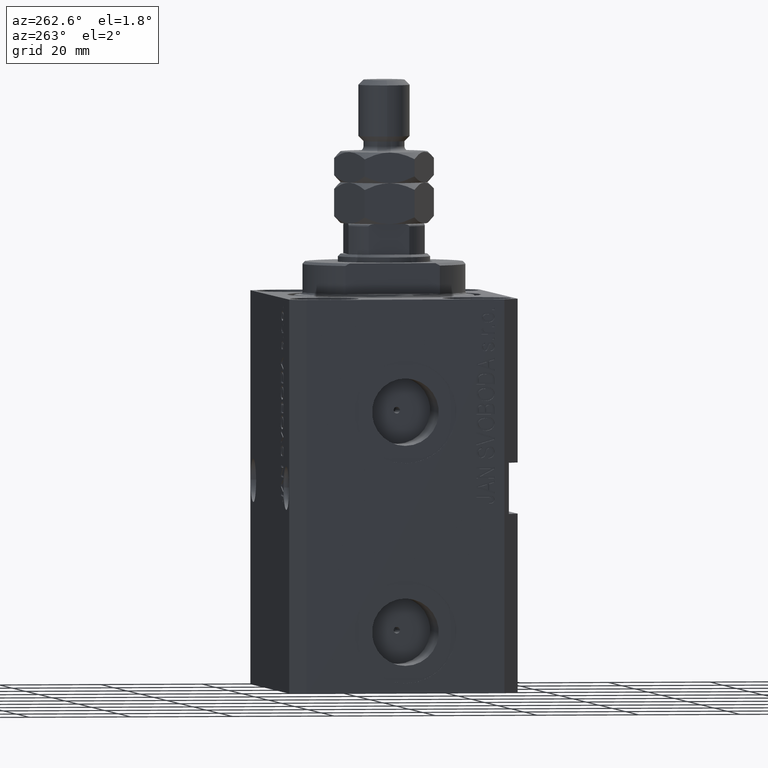
[diagram: clean part render]
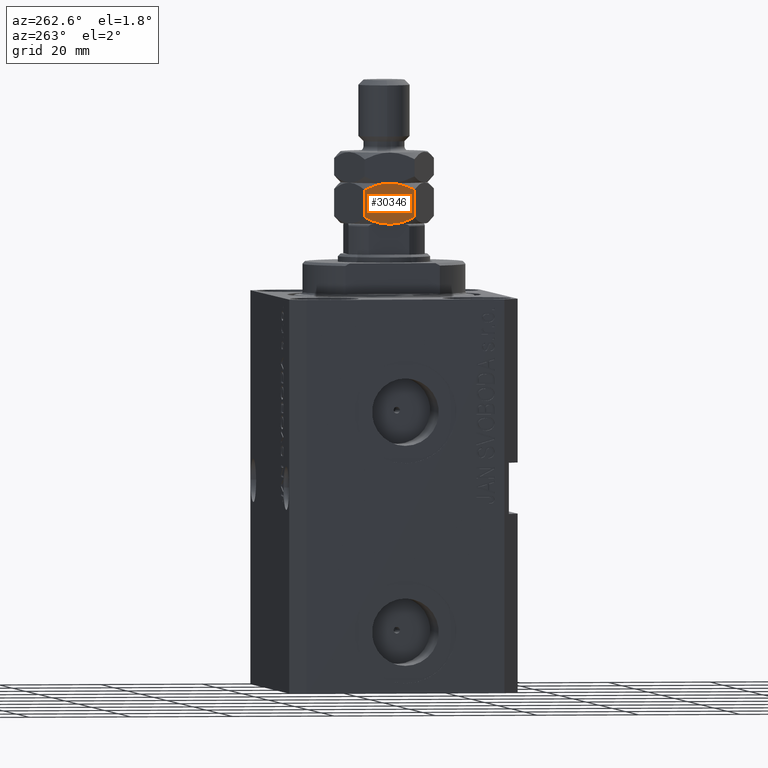
[diagram: same view with one face highlighted and labeled with its STEP entity id]
A machine part, auxiliary view. The second image highlights one B-rep face of the part: STEP entity #30346.
In plain terms, the highlighted planar face has unit normal (1, 0, 0).
Its self-contained STEP definition (entity closure, byte-faithful):
#135 = ORIENTED_EDGE ( 'NONE', *, *, #21195, .F. ) ;
#661 = CARTESIAN_POINT ( 'NONE',  ( -8.500000000000000000, -4.907477288111824265, 8.000000000000000000 ) ) ;
#2138 = CARTESIAN_POINT ( 'NONE',  ( -8.500000000000001776, -4.140161075469500851, 7.068703530097532273 ) ) ;
#2687 = FACE_OUTER_BOUND ( 'NONE', #31686, .T. ) ;
#3184 = ORIENTED_EDGE ( 'NONE', *, *, #4868, .F. ) ;
#3421 = VECTOR ( 'NONE', #36679, 1000.000000000000000 ) ;
#3712 = CARTESIAN_POINT ( 'NONE',  ( -8.499999999999998224, -0.8497195448779558680, 0.03207620093399911332 ) ) ;
#4868 = EDGE_CURVE ( 'NONE', #20050, #22221, #39556, .T. ) ;
#6216 = VERTEX_POINT ( 'NONE', #17713 ) ;
#6409 = CARTESIAN_POINT ( 'NONE',  ( -8.500000000000001776, 4.907477288111821601, 8.000000000000000000 ) ) ;
#8018 = CARTESIAN_POINT ( 'NONE',  ( -8.500000000000001776, 4.907477288111821601, 1.314954576223634097 ) ) ;
#8241 = CARTESIAN_POINT ( 'NONE',  ( -8.500000000000001776, 2.123774520232882601, 0.2525122409469394702 ) ) ;
#8259 = CARTESIAN_POINT ( 'NONE',  ( -8.499999999999996447, -1.502314598737157848E-15, 8.000000000000000000 ) ) ;
#8415 = CARTESIAN_POINT ( 'NONE',  ( -8.500000000000000000, -4.907477288111824265, 6.685045423776367457 ) ) ;
#8465 = CARTESIAN_POINT ( 'NONE',  ( -8.500000000000001776, 4.139332188297095705, 0.9308820263162732589 ) ) ;
#9550 = DIRECTION ( 'NONE',  ( -0.000000000000000000, -0.000000000000000000, -1.000000000000000000 ) ) ;
#11850 = VERTEX_POINT ( 'NONE', #19688 ) ;
#11967 = CARTESIAN_POINT ( 'NONE',  ( -8.500000000000003553, 0.4250562772389694932, 8.000000000000005329 ) ) ;
#12193 = CARTESIAN_POINT ( 'NONE',  ( -8.500000000000001776, 4.907477288111821601, 6.685045423776368345 ) ) ;
#12621 = EDGE_CURVE ( 'NONE', #11850, #20050, #24757, .T. ) ;
#12624 = ORIENTED_EDGE ( 'NONE', *, *, #33029, .F. ) ;
#13244 = CARTESIAN_POINT ( 'NONE',  ( -8.500000000000001776, -4.139854994771650532, 0.9311434295535483407 ) ) ;
#13574 = EDGE_CURVE ( 'NONE', #6216, #22221, #34897, .T. ) ;
#15651 = CARTESIAN_POINT ( 'NONE',  ( -8.500000000000003553, 0.4256370648452535432, -8.499975625696900944E-16 ) ) ;
#16717 = CARTESIAN_POINT ( 'NONE',  ( -8.500000000000000000, -4.907477288111824265, 1.314954576223634763 ) ) ;
#17145 = CARTESIAN_POINT ( 'NONE',  ( -8.499999999999996447, -1.502314598737157848E-15, 8.000000000000000000 ) ) ;
#17640 = CARTESIAN_POINT ( 'NONE',  ( -8.499999999999998224, -2.119956228269633591, 0.2515287342491187017 ) ) ;
#17713 = CARTESIAN_POINT ( 'NONE',  ( -8.500000000000001776, 4.907477288111821601, 6.685045423776368345 ) ) ;
#18538 = LINE ( 'NONE', #661, #3421 ) ;
#19170 = CARTESIAN_POINT ( 'NONE',  ( -8.500000000000003553, 4.139497883677782930, 7.069035125993385904 ) ) ;
#19688 = CARTESIAN_POINT ( 'NONE',  ( -8.500000000000000000, -4.907477288111824265, 1.314954576223634763 ) ) ;
#20050 = VERTEX_POINT ( 'NONE', #45804 ) ;
#20681 = CARTESIAN_POINT ( 'NONE',  ( -8.500000000000000000, -1.697406582464703551, 0.1576838761756158558 ) ) ;
#20772 = CARTESIAN_POINT ( 'NONE',  ( -8.500000000000000000, -4.907477288111824265, 6.685045423776367457 ) ) ;
#21195 = EDGE_CURVE ( 'NONE', #23048, #32329, #28252, .T. ) ;
#22198 = CARTESIAN_POINT ( 'NONE',  ( -8.500000000000003553, 0.8497849549400458002, 7.967944758129794636 ) ) ;
#22221 = VERTEX_POINT ( 'NONE', #26407 ) ;
#22630 = CARTESIAN_POINT ( 'NONE',  ( -8.500000000000001776, 3.352020480670828029, 0.6033098685796222105 ) ) ;
#22810 = CARTESIAN_POINT ( 'NONE',  ( -8.500000000000001776, -3.353279637626481513, 7.396279653520236863 ) ) ;
#22864 = CARTESIAN_POINT ( 'NONE',  ( -8.500000000000003553, 1.706008309425099290, 0.1592238233048453577 ) ) ;
#23048 = VERTEX_POINT ( 'NONE', #33172 ) ;
#24149 = CARTESIAN_POINT ( 'NONE',  ( -8.500000000000001776, -1.502314598737158637E-15, 0.000000000000000000 ) ) ;
#24757 = B_SPLINE_CURVE_WITH_KNOTS ( 'NONE', 3,
 ( #16717, #13244, #41611, #17640, #20681, #3712, #31358, #24149 ),
 .UNSPECIFIED., .F., .F.,
 ( 4, 2, 2, 4 ),
 ( 0.01599723978826466178, 0.01855901487057518354, 0.01983990241173044441, 0.02112078995288570529 ),
 .UNSPECIFIED. ) ;
#25895 = CARTESIAN_POINT ( 'NONE',  ( -8.500000000000003553, 0.8519727303832903553, 0.03214805330870153938 ) ) ;
#26407 = CARTESIAN_POINT ( 'NONE',  ( -8.500000000000001776, 4.907477288111821601, 1.314954576223634097 ) ) ;
#28252 = B_SPLINE_CURVE_WITH_KNOTS ( 'NONE', 3,
 ( #17145, #44667, #33977, #40253, #41169, #22810, #2138, #8415 ),
 .UNSPECIFIED., .F., .F.,
 ( 4, 2, 2, 4 ),
 ( 0.02090421300422859799, 0.02218651579087455722, 0.02346881857752051298, 0.02603342415081242797 ),
 .UNSPECIFIED. ) ;
#29323 = AXIS2_PLACEMENT_3D ( 'NONE', #6409, #38701, #34766 ) ;
#29636 = CARTESIAN_POINT ( 'NONE',  ( -8.500000000000001776, 2.120344129356181995, 7.748361753394902074 ) ) ;
#30346 = ADVANCED_FACE ( 'NONE', ( #2687 ), #38245, .F. ) ;
#31358 = CARTESIAN_POINT ( 'NONE',  ( -8.500000000000001776, -0.4252082920830618229, -8.797848878814666846E-16 ) ) ;
#31686 = EDGE_LOOP ( 'NONE', ( #40845, #12624, #135, #32208, #37490, #3184 ) ) ;
#32208 = ORIENTED_EDGE ( 'NONE', *, *, #36937, .F. ) ;
#32329 = VERTEX_POINT ( 'NONE', #20772 ) ;
#33029 = EDGE_CURVE ( 'NONE', #32329, #11850, #18538, .T. ) ;
#33172 = CARTESIAN_POINT ( 'NONE',  ( -8.499999999999996447, -1.502314598737157848E-15, 8.000000000000000000 ) ) ;
#33977 = CARTESIAN_POINT ( 'NONE',  ( -8.500000000000000000, -0.8516617604573334388, 7.967848961132538044 ) ) ;
#34766 = DIRECTION ( 'NONE',  ( -1.767428939690774316E-16, 1.000000000000000000, 0.000000000000000000 ) ) ;
#34897 = LINE ( 'NONE', #45352, #35495 ) ;
#35457 = CARTESIAN_POINT ( 'NONE',  ( -8.500000000000001776, -1.502314598737158637E-15, 0.000000000000000000 ) ) ;
#35495 = VECTOR ( 'NONE', #9550, 1000.000000000000000 ) ;
#36679 = DIRECTION ( 'NONE',  ( -0.000000000000000000, -0.000000000000000000, -1.000000000000000000 ) ) ;
#36937 = EDGE_CURVE ( 'NONE', #6216, #23048, #44244, .T. ) ;
#37293 = CARTESIAN_POINT ( 'NONE',  ( -8.500000000000003553, 3.351438397892507748, 7.397066932847728538 ) ) ;
#37490 = ORIENTED_EDGE ( 'NONE', *, *, #13574, .T. ) ;
#38245 = PLANE ( 'NONE',  #29323 ) ;
#38701 = DIRECTION ( 'NONE',  ( 1.000000000000000000, 1.767428939690774316E-16, -0.000000000000000000 ) ) ;
#39556 = B_SPLINE_CURVE_WITH_KNOTS ( 'NONE', 3,
 ( #35457, #15651, #25895, #22864, #8241, #22630, #8465, #8018 ),
 .UNSPECIFIED., .F., .F.,
 ( 4, 2, 2, 4 ),
 ( 0.02112078995288570529, 0.02240296911910874544, 0.02368514828533178213, 0.02624950661777785896 ),
 .UNSPECIFIED. ) ;
#40253 = CARTESIAN_POINT ( 'NONE',  ( -8.500000000000000000, -1.704290491844014266, 7.841080917550289797 ) ) ;
#40547 = CARTESIAN_POINT ( 'NONE',  ( -8.500000000000001776, 1.698611466173708173, 7.842106890605590408 ) ) ;
#40845 = ORIENTED_EDGE ( 'NONE', *, *, #12621, .F. ) ;
#41169 = CARTESIAN_POINT ( 'NONE',  ( -8.500000000000000000, -2.124043526558857753, 7.747436326571863319 ) ) ;
#41611 = CARTESIAN_POINT ( 'NONE',  ( -8.500000000000000000, -3.352131279506822104, 0.6031284304619860537 ) ) ;
#44244 = B_SPLINE_CURVE_WITH_KNOTS ( 'NONE', 3,
 ( #12193, #19170, #37293, #29636, #40547, #22198, #11967, #8259 ),
 .UNSPECIFIED., .F., .F.,
 ( 4, 2, 2, 4 ),
 ( 0.01578235603560546041, 0.01834328451991702746, 0.01962374876207281446, 0.02090421300422859799 ),
 .UNSPECIFIED. ) ;
#44667 = CARTESIAN_POINT ( 'NONE',  ( -8.500000000000000000, -0.4256665909445839779, 8.000000000000001776 ) ) ;
#45352 = CARTESIAN_POINT ( 'NONE',  ( -8.500000000000001776, 4.907477288111821601, 8.000000000000000000 ) ) ;
#45804 = CARTESIAN_POINT ( 'NONE',  ( -8.500000000000001776, -1.502314598737158637E-15, 0.000000000000000000 ) ) ;